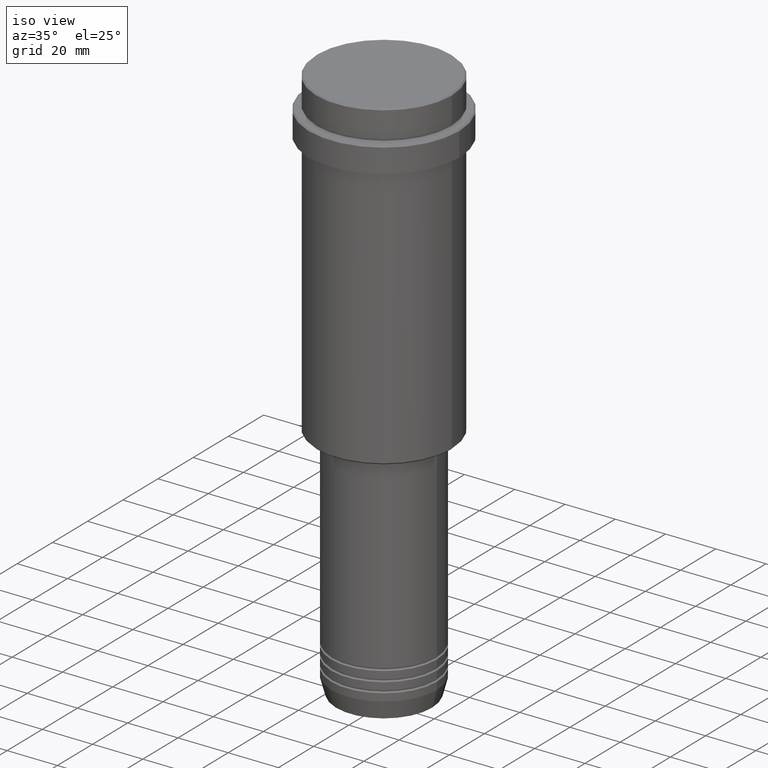
[diagram: clean part render]
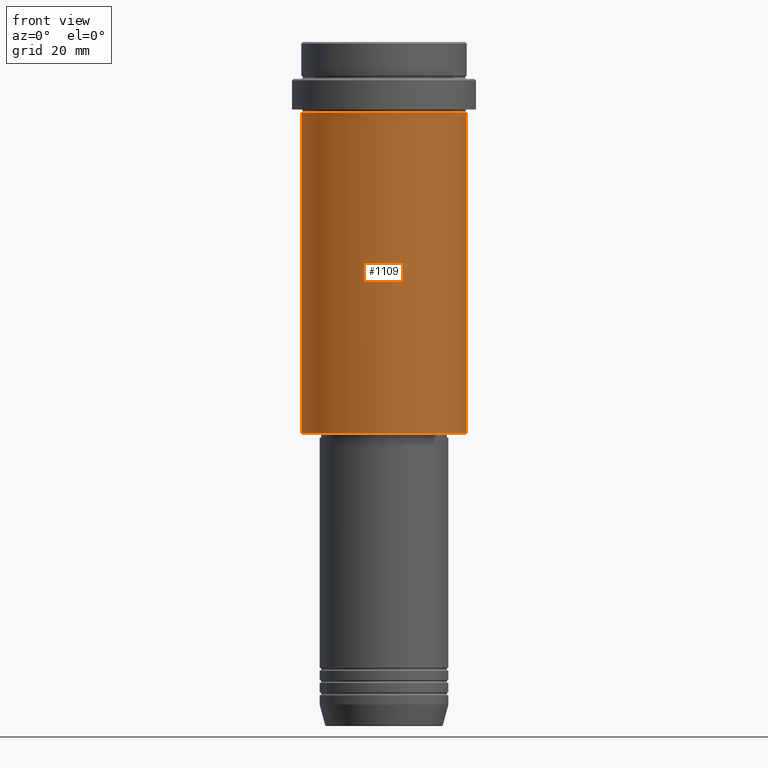
[diagram: tour spotlight — one face highlighted and labeled with its STEP entity id]
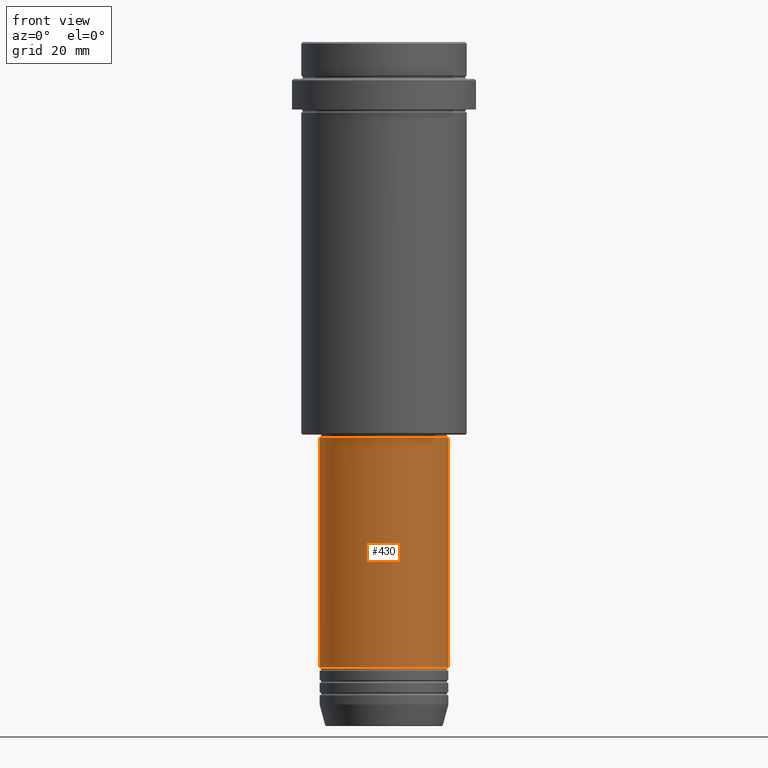
[diagram: tour spotlight — one face highlighted and labeled with its STEP entity id]
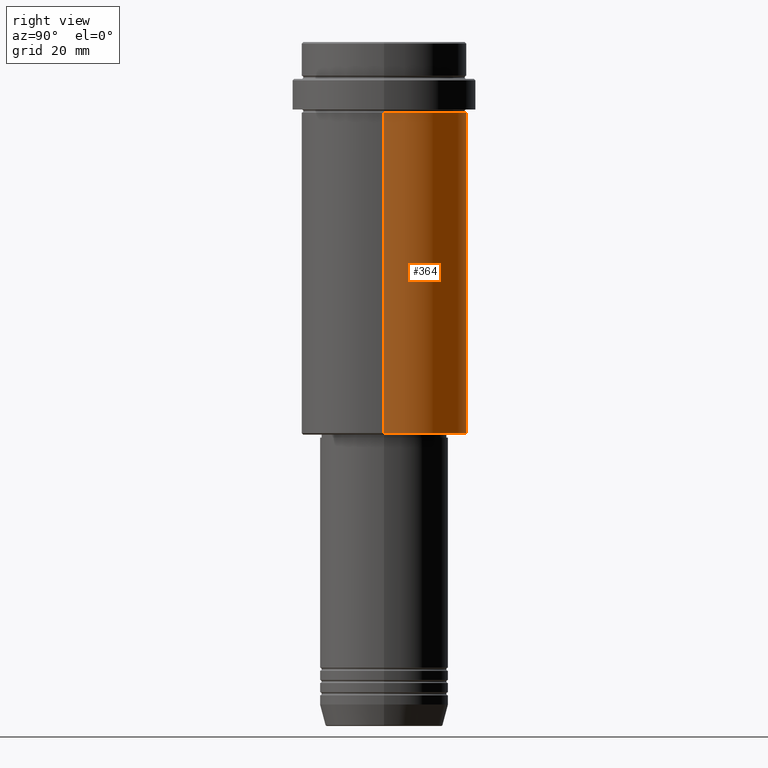
[diagram: tour spotlight — one face highlighted and labeled with its STEP entity id]
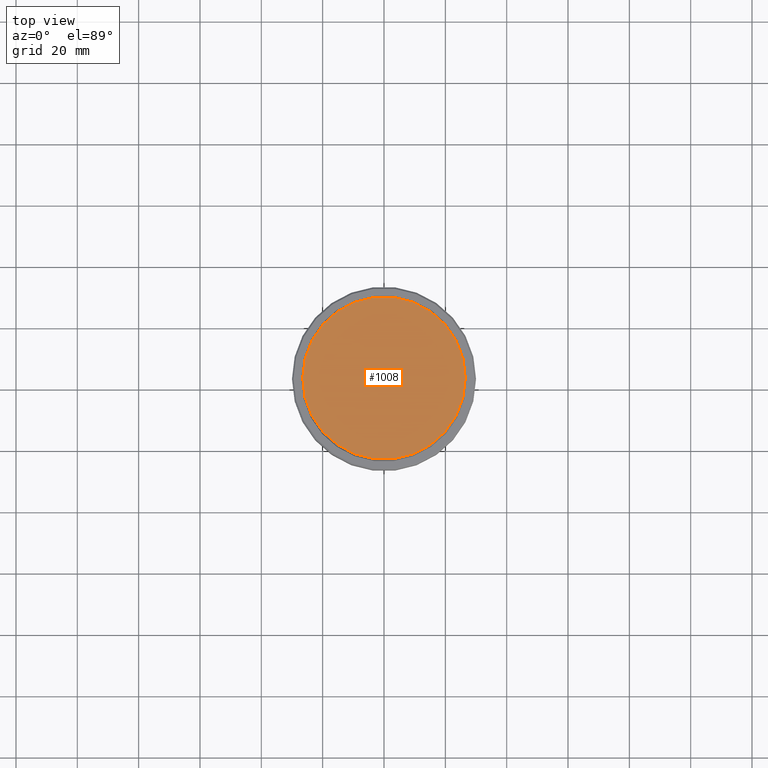
[diagram: tour spotlight — one face highlighted and labeled with its STEP entity id]
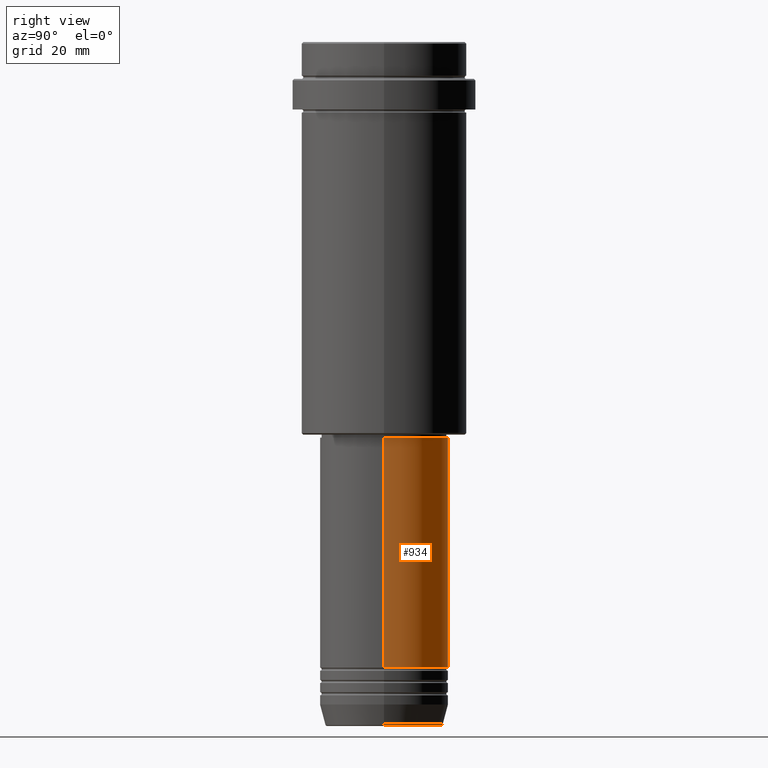
[diagram: tour spotlight — one face highlighted and labeled with its STEP entity id]
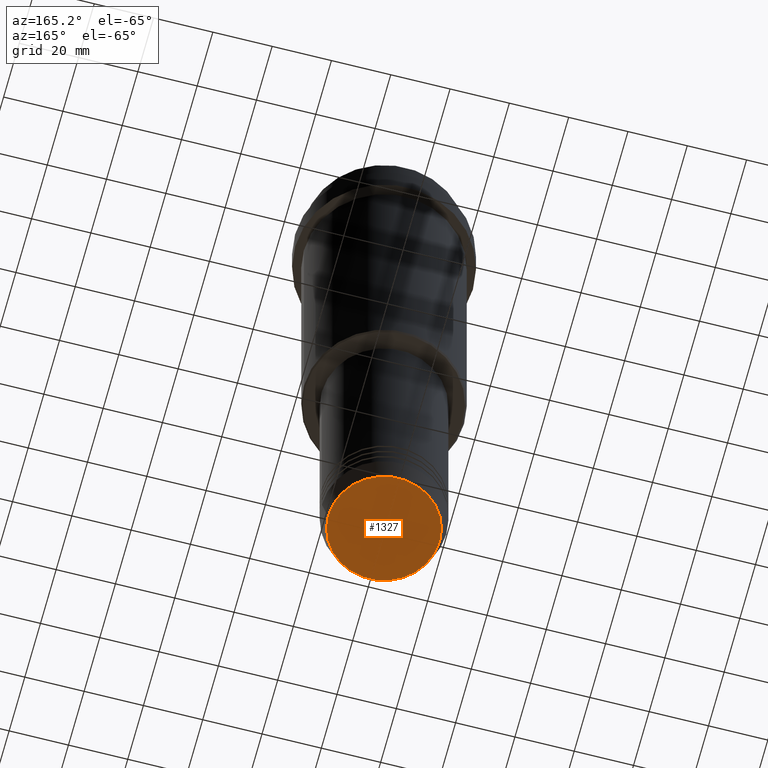
[diagram: tour spotlight — one face highlighted and labeled with its STEP entity id]
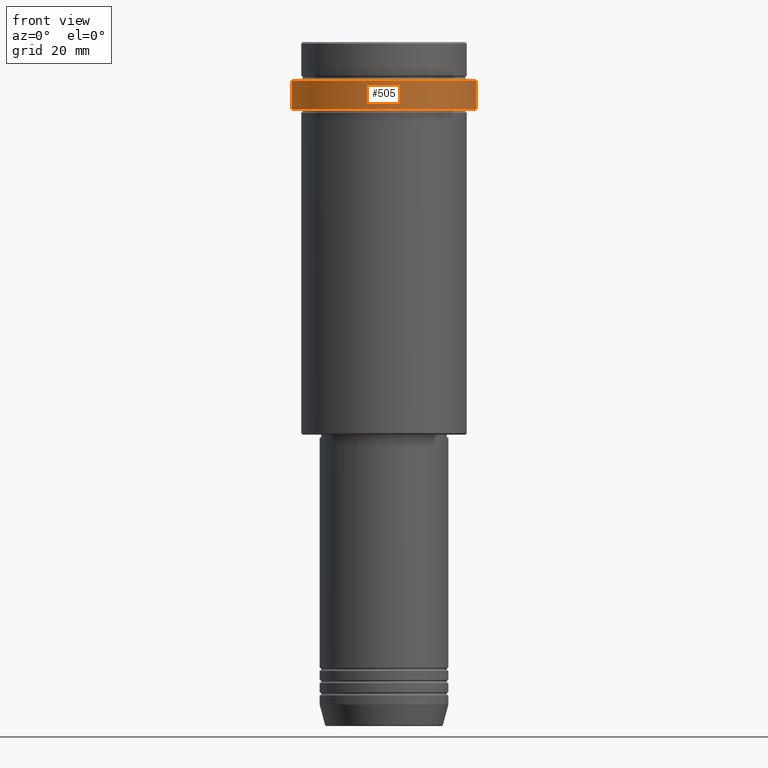
[diagram: tour spotlight — one face highlighted and labeled with its STEP entity id]
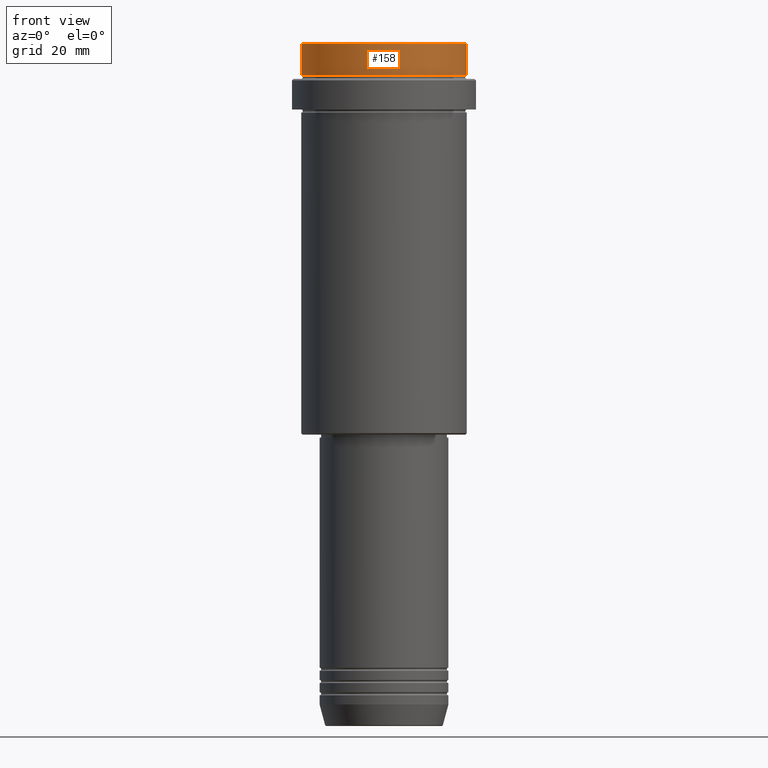
[diagram: tour spotlight — one face highlighted and labeled with its STEP entity id]
A machine part: a face-by-face anatomy tour. The part has 52 B-rep faces; the first image is the clean iso view, then the 8 largest visible faces are spotlighted one at a time (largest first), each with its STEP entity span.

Face 1 — front view, entity #1109. In plain terms, the highlighted cylindrical surface (partial cylindrical patch) has radius 27 mm, axis along (-0, -0, 1).
Definition (entity closure, byte-faithful):
#11 = AXIS2_PLACEMENT_3D ( 'NONE', #1123, #264, #685 ) ;
#61 = VERTEX_POINT ( 'NONE', #912 ) ;
#96 = LINE ( 'NONE', #214, #1414 ) ;
#100 = DIRECTION ( 'NONE',  ( -0.000000000000000000, -0.000000000000000000, 1.000000000000000000 ) ) ;
#116 = DIRECTION ( 'NONE',  ( 1.000000000000000000, 0.000000000000000000, 0.000000000000000000 ) ) ;
#117 = LINE ( 'NONE', #439, #1246 ) ;
#176 = AXIS2_PLACEMENT_3D ( 'NONE', #229, #690, #1225 ) ;
#185 = CARTESIAN_POINT ( 'NONE',  ( 26.99999999999999645, 0.000000000000000000, -127.5000000000000284 ) ) ;
#214 = CARTESIAN_POINT ( 'NONE',  ( 26.99999999999999645, 0.000000000000000000, 0.000000000000000000 ) ) ;
#229 = CARTESIAN_POINT ( 'NONE',  ( 0.000000000000000000, 0.000000000000000000, 0.000000000000000000 ) ) ;
#264 = DIRECTION ( 'NONE',  ( -0.000000000000000000, -0.000000000000000000, 1.000000000000000000 ) ) ;
#296 = VERTEX_POINT ( 'NONE', #185 ) ;
#439 = CARTESIAN_POINT ( 'NONE',  ( -26.99999999999999645, 3.306546357697853339E-15, 0.000000000000000000 ) ) ;
#549 = ORIENTED_EDGE ( 'NONE', *, *, #1101, .T. ) ;
#574 = EDGE_LOOP ( 'NONE', ( #650, #549, #773, #1400 ) ) ;
#610 = CARTESIAN_POINT ( 'NONE',  ( 26.99999999999999645, 0.000000000000000000, -23.00000000000000000 ) ) ;
#634 = CARTESIAN_POINT ( 'NONE',  ( 0.000000000000000000, 0.000000000000000000, -23.00000000000000000 ) ) ;
#637 = EDGE_CURVE ( 'NONE', #61, #1204, #117, .T. ) ;
#650 = ORIENTED_EDGE ( 'NONE', *, *, #637, .F. ) ;
#685 = DIRECTION ( 'NONE',  ( -1.000000000000000000, 0.000000000000000000, 0.000000000000000000 ) ) ;
#690 = DIRECTION ( 'NONE',  ( -0.000000000000000000, -0.000000000000000000, 1.000000000000000000 ) ) ;
#703 = FACE_OUTER_BOUND ( 'NONE', #574, .T. ) ;
#719 = VERTEX_POINT ( 'NONE', #610 ) ;
#773 = ORIENTED_EDGE ( 'NONE', *, *, #1408, .T. ) ;
#865 = DIRECTION ( 'NONE',  ( -0.000000000000000000, -0.000000000000000000, 1.000000000000000000 ) ) ;
#912 = CARTESIAN_POINT ( 'NONE',  ( -26.99999999999999645, 3.306546357697853339E-15, -127.5000000000000284 ) ) ;
#920 = EDGE_CURVE ( 'NONE', #1204, #719, #1338, .T. ) ;
#926 = CIRCLE ( 'NONE', #11, 26.99999999999999645 ) ;
#1053 = CARTESIAN_POINT ( 'NONE',  ( -26.99999999999999645, 3.306546357697853339E-15, -23.00000000000000000 ) ) ;
#1087 = DIRECTION ( 'NONE',  ( -0.000000000000000000, -0.000000000000000000, 1.000000000000000000 ) ) ;
#1101 = EDGE_CURVE ( 'NONE', #61, #296, #926, .T. ) ;
#1109 = ADVANCED_FACE ( 'NONE', ( #703 ), #1339, .T. ) ;
#1123 = CARTESIAN_POINT ( 'NONE',  ( 0.000000000000000000, 0.000000000000000000, -127.5000000000000284 ) ) ;
#1204 = VERTEX_POINT ( 'NONE', #1053 ) ;
#1225 = DIRECTION ( 'NONE',  ( 1.000000000000000000, 0.000000000000000000, 0.000000000000000000 ) ) ;
#1246 = VECTOR ( 'NONE', #865, 1000.000000000000000 ) ;
#1294 = AXIS2_PLACEMENT_3D ( 'NONE', #634, #1087, #116 ) ;
#1338 = CIRCLE ( 'NONE', #1294, 26.99999999999999645 ) ;
#1339 = CYLINDRICAL_SURFACE ( 'NONE', #176, 26.99999999999999645 ) ;
#1400 = ORIENTED_EDGE ( 'NONE', *, *, #920, .F. ) ;
#1408 = EDGE_CURVE ( 'NONE', #296, #719, #96, .T. ) ;
#1414 = VECTOR ( 'NONE', #100, 1000.000000000000000 ) ;

Face 2 — front view, entity #430. In plain terms, the highlighted cylindrical surface (partial cylindrical patch) has radius 21 mm, axis along (-0, -0, 1).
Definition (entity closure, byte-faithful):
#9 = CARTESIAN_POINT ( 'NONE',  ( 20.99999999999999645, 0.000000000000000000, 0.000000000000000000 ) ) ;
#48 = CARTESIAN_POINT ( 'NONE',  ( 0.000000000000000000, 0.000000000000000000, -203.9999999999999147 ) ) ;
#113 = CYLINDRICAL_SURFACE ( 'NONE', #812, 20.99999999999999645 ) ;
#130 = VERTEX_POINT ( 'NONE', #1330 ) ;
#300 = VERTEX_POINT ( 'NONE', #1131 ) ;
#403 = CIRCLE ( 'NONE', #1042, 21.00000000000000000 ) ;
#409 = CARTESIAN_POINT ( 'NONE',  ( 20.99999999999999645, 0.000000000000000000, -129.0000000000000284 ) ) ;
#430 = ADVANCED_FACE ( 'NONE', ( #1302 ), #113, .T. ) ;
#444 = DIRECTION ( 'NONE',  ( -0.000000000000000000, -0.000000000000000000, 1.000000000000000000 ) ) ;
#456 = VERTEX_POINT ( 'NONE', #1295 ) ;
#479 = DIRECTION ( 'NONE',  ( -0.000000000000000000, -0.000000000000000000, 1.000000000000000000 ) ) ;
#537 = CARTESIAN_POINT ( 'NONE',  ( -20.99999999999999645, 2.571758278209441267E-15, 0.000000000000000000 ) ) ;
#542 = DIRECTION ( 'NONE',  ( 1.000000000000000000, 0.000000000000000000, 0.000000000000000000 ) ) ;
#635 = DIRECTION ( 'NONE',  ( -0.000000000000000000, -0.000000000000000000, 1.000000000000000000 ) ) ;
#654 = DIRECTION ( 'NONE',  ( -0.000000000000000000, -0.000000000000000000, 1.000000000000000000 ) ) ;
#675 = EDGE_CURVE ( 'NONE', #130, #1187, #984, .T. ) ;
#699 = CIRCLE ( 'NONE', #1366, 20.99999999999999645 ) ;
#798 = ORIENTED_EDGE ( 'NONE', *, *, #1410, .F. ) ;
#812 = AXIS2_PLACEMENT_3D ( 'NONE', #959, #635, #542 ) ;
#871 = EDGE_CURVE ( 'NONE', #456, #300, #1209, .T. ) ;
#913 = DIRECTION ( 'NONE',  ( 1.000000000000000000, 0.000000000000000000, 0.000000000000000000 ) ) ;
#937 = ORIENTED_EDGE ( 'NONE', *, *, #1153, .T. ) ;
#949 = VECTOR ( 'NONE', #1210, 1000.000000000000000 ) ;
#959 = CARTESIAN_POINT ( 'NONE',  ( 0.000000000000000000, 0.000000000000000000, 0.000000000000000000 ) ) ;
#960 = CARTESIAN_POINT ( 'NONE',  ( 0.000000000000000000, 0.000000000000000000, -129.0000000000000284 ) ) ;
#984 = LINE ( 'NONE', #9, #949 ) ;
#1001 = ORIENTED_EDGE ( 'NONE', *, *, #675, .T. ) ;
#1022 = ORIENTED_EDGE ( 'NONE', *, *, #871, .F. ) ;
#1042 = AXIS2_PLACEMENT_3D ( 'NONE', #48, #479, #913 ) ;
#1065 = VECTOR ( 'NONE', #444, 1000.000000000000000 ) ;
#1131 = CARTESIAN_POINT ( 'NONE',  ( -20.99999999999999645, 2.571758278209441267E-15, -129.0000000000000284 ) ) ;
#1153 = EDGE_CURVE ( 'NONE', #456, #130, #403, .T. ) ;
#1183 = DIRECTION ( 'NONE',  ( 1.000000000000000000, 0.000000000000000000, 0.000000000000000000 ) ) ;
#1187 = VERTEX_POINT ( 'NONE', #409 ) ;
#1209 = LINE ( 'NONE', #537, #1065 ) ;
#1210 = DIRECTION ( 'NONE',  ( -0.000000000000000000, -0.000000000000000000, 1.000000000000000000 ) ) ;
#1229 = EDGE_LOOP ( 'NONE', ( #1022, #937, #1001, #798 ) ) ;
#1295 = CARTESIAN_POINT ( 'NONE',  ( -21.00000000000000000, 2.571758278209441661E-15, -203.9999999999999147 ) ) ;
#1302 = FACE_OUTER_BOUND ( 'NONE', #1229, .T. ) ;
#1330 = CARTESIAN_POINT ( 'NONE',  ( 21.00000000000000000, 0.000000000000000000, -203.9999999999999147 ) ) ;
#1366 = AXIS2_PLACEMENT_3D ( 'NONE', #960, #654, #1183 ) ;
#1410 = EDGE_CURVE ( 'NONE', #300, #1187, #699, .T. ) ;

Face 3 — right view, entity #364. In plain terms, the highlighted cylindrical surface (partial cylindrical patch) has radius 27 mm, axis along (-0, -0, 1).
Definition (entity closure, byte-faithful):
#10 = CIRCLE ( 'NONE', #467, 26.99999999999999645 ) ;
#43 = DIRECTION ( 'NONE',  ( 1.000000000000000000, 0.000000000000000000, 0.000000000000000000 ) ) ;
#61 = VERTEX_POINT ( 'NONE', #912 ) ;
#91 = DIRECTION ( 'NONE',  ( -1.000000000000000000, 0.000000000000000000, 0.000000000000000000 ) ) ;
#96 = LINE ( 'NONE', #214, #1414 ) ;
#100 = DIRECTION ( 'NONE',  ( -0.000000000000000000, -0.000000000000000000, 1.000000000000000000 ) ) ;
#117 = LINE ( 'NONE', #439, #1246 ) ;
#183 = DIRECTION ( 'NONE',  ( 1.000000000000000000, 0.000000000000000000, 0.000000000000000000 ) ) ;
#185 = CARTESIAN_POINT ( 'NONE',  ( 26.99999999999999645, 0.000000000000000000, -127.5000000000000284 ) ) ;
#214 = CARTESIAN_POINT ( 'NONE',  ( 26.99999999999999645, 0.000000000000000000, 0.000000000000000000 ) ) ;
#296 = VERTEX_POINT ( 'NONE', #185 ) ;
#364 = ADVANCED_FACE ( 'NONE', ( #483 ), #918, .T. ) ;
#397 = DIRECTION ( 'NONE',  ( -0.000000000000000000, -0.000000000000000000, 1.000000000000000000 ) ) ;
#439 = CARTESIAN_POINT ( 'NONE',  ( -26.99999999999999645, 3.306546357697853339E-15, 0.000000000000000000 ) ) ;
#467 = AXIS2_PLACEMENT_3D ( 'NONE', #939, #824, #183 ) ;
#483 = FACE_OUTER_BOUND ( 'NONE', #902, .T. ) ;
#602 = DIRECTION ( 'NONE',  ( -0.000000000000000000, -0.000000000000000000, 1.000000000000000000 ) ) ;
#610 = CARTESIAN_POINT ( 'NONE',  ( 26.99999999999999645, 0.000000000000000000, -23.00000000000000000 ) ) ;
#637 = EDGE_CURVE ( 'NONE', #61, #1204, #117, .T. ) ;
#711 = ORIENTED_EDGE ( 'NONE', *, *, #760, .F. ) ;
#719 = VERTEX_POINT ( 'NONE', #610 ) ;
#741 = EDGE_CURVE ( 'NONE', #296, #61, #1016, .T. ) ;
#760 = EDGE_CURVE ( 'NONE', #719, #1204, #10, .T. ) ;
#823 = ORIENTED_EDGE ( 'NONE', *, *, #741, .T. ) ;
#824 = DIRECTION ( 'NONE',  ( -0.000000000000000000, -0.000000000000000000, 1.000000000000000000 ) ) ;
#852 = AXIS2_PLACEMENT_3D ( 'NONE', #957, #602, #91 ) ;
#865 = DIRECTION ( 'NONE',  ( -0.000000000000000000, -0.000000000000000000, 1.000000000000000000 ) ) ;
#902 = EDGE_LOOP ( 'NONE', ( #823, #1258, #711, #1000 ) ) ;
#912 = CARTESIAN_POINT ( 'NONE',  ( -26.99999999999999645, 3.306546357697853339E-15, -127.5000000000000284 ) ) ;
#918 = CYLINDRICAL_SURFACE ( 'NONE', #1292, 26.99999999999999645 ) ;
#939 = CARTESIAN_POINT ( 'NONE',  ( 0.000000000000000000, 0.000000000000000000, -23.00000000000000000 ) ) ;
#957 = CARTESIAN_POINT ( 'NONE',  ( 0.000000000000000000, 0.000000000000000000, -127.5000000000000284 ) ) ;
#1000 = ORIENTED_EDGE ( 'NONE', *, *, #1408, .F. ) ;
#1016 = CIRCLE ( 'NONE', #852, 26.99999999999999645 ) ;
#1053 = CARTESIAN_POINT ( 'NONE',  ( -26.99999999999999645, 3.306546357697853339E-15, -23.00000000000000000 ) ) ;
#1144 = CARTESIAN_POINT ( 'NONE',  ( 0.000000000000000000, 0.000000000000000000, 0.000000000000000000 ) ) ;
#1204 = VERTEX_POINT ( 'NONE', #1053 ) ;
#1246 = VECTOR ( 'NONE', #865, 1000.000000000000000 ) ;
#1258 = ORIENTED_EDGE ( 'NONE', *, *, #637, .T. ) ;
#1292 = AXIS2_PLACEMENT_3D ( 'NONE', #1144, #397, #43 ) ;
#1408 = EDGE_CURVE ( 'NONE', #296, #719, #96, .T. ) ;
#1414 = VECTOR ( 'NONE', #100, 1000.000000000000000 ) ;

Face 4 — top view, entity #1008. In plain terms, the highlighted planar face has unit normal (0, -0, 1).
Definition (entity closure, byte-faithful):
#21 = DIRECTION ( 'NONE',  ( 1.000000000000000000, 0.000000000000000000, 0.000000000000000000 ) ) ;
#131 = PLANE ( 'NONE',  #750 ) ;
#138 = CARTESIAN_POINT ( 'NONE',  ( 26.50000000000002487, 3.275930187719171130E-15, 0.000000000000000000 ) ) ;
#242 = ORIENTED_EDGE ( 'NONE', *, *, #1034, .T. ) ;
#253 = EDGE_LOOP ( 'NONE', ( #242, #584 ) ) ;
#307 = DIRECTION ( 'NONE',  ( -0.000000000000000000, -0.000000000000000000, 1.000000000000000000 ) ) ;
#365 = DIRECTION ( 'NONE',  ( -0.000000000000000000, -0.000000000000000000, 1.000000000000000000 ) ) ;
#463 = CARTESIAN_POINT ( 'NONE',  ( 0.000000000000000000, 0.000000000000000000, 0.000000000000000000 ) ) ;
#472 = AXIS2_PLACEMENT_3D ( 'NONE', #1208, #307, #870 ) ;
#570 = CARTESIAN_POINT ( 'NONE',  ( 0.000000000000000000, 0.000000000000000000, 0.000000000000000000 ) ) ;
#584 = ORIENTED_EDGE ( 'NONE', *, *, #1373, .T. ) ;
#587 = FACE_OUTER_BOUND ( 'NONE', #253, .T. ) ;
#629 = CIRCLE ( 'NONE', #1019, 26.50000000000002487 ) ;
#750 = AXIS2_PLACEMENT_3D ( 'NONE', #463, #796, #21 ) ;
#796 = DIRECTION ( 'NONE',  ( 0.000000000000000000, -0.000000000000000000, 1.000000000000000000 ) ) ;
#870 = DIRECTION ( 'NONE',  ( 1.000000000000000000, 0.000000000000000000, 0.000000000000000000 ) ) ;
#1008 = ADVANCED_FACE ( 'NONE', ( #587 ), #131, .T. ) ;
#1015 = DIRECTION ( 'NONE',  ( 1.000000000000000000, 0.000000000000000000, 0.000000000000000000 ) ) ;
#1019 = AXIS2_PLACEMENT_3D ( 'NONE', #570, #365, #1015 ) ;
#1034 = EDGE_CURVE ( 'NONE', #1407, #1133, #629, .T. ) ;
#1076 = CARTESIAN_POINT ( 'NONE',  ( -26.50000000000002487, 0.000000000000000000, 0.000000000000000000 ) ) ;
#1133 = VERTEX_POINT ( 'NONE', #138 ) ;
#1208 = CARTESIAN_POINT ( 'NONE',  ( 0.000000000000000000, 0.000000000000000000, 0.000000000000000000 ) ) ;
#1226 = CIRCLE ( 'NONE', #472, 26.50000000000002487 ) ;
#1373 = EDGE_CURVE ( 'NONE', #1133, #1407, #1226, .T. ) ;
#1407 = VERTEX_POINT ( 'NONE', #1076 ) ;

Face 5 — right view, entity #934. In plain terms, the highlighted cylindrical surface (partial cylindrical patch) has radius 21 mm, axis along (-0, -0, 1).
Definition (entity closure, byte-faithful):
#9 = CARTESIAN_POINT ( 'NONE',  ( 20.99999999999999645, 0.000000000000000000, 0.000000000000000000 ) ) ;
#130 = VERTEX_POINT ( 'NONE', #1330 ) ;
#222 = CYLINDRICAL_SURFACE ( 'NONE', #581, 20.99999999999999645 ) ;
#247 = EDGE_CURVE ( 'NONE', #130, #456, #323, .T. ) ;
#258 = ORIENTED_EDGE ( 'NONE', *, *, #761, .F. ) ;
#300 = VERTEX_POINT ( 'NONE', #1131 ) ;
#323 = CIRCLE ( 'NONE', #1307, 21.00000000000000000 ) ;
#324 = ORIENTED_EDGE ( 'NONE', *, *, #675, .F. ) ;
#382 = CARTESIAN_POINT ( 'NONE',  ( 0.000000000000000000, 0.000000000000000000, -203.9999999999999147 ) ) ;
#409 = CARTESIAN_POINT ( 'NONE',  ( 20.99999999999999645, 0.000000000000000000, -129.0000000000000284 ) ) ;
#444 = DIRECTION ( 'NONE',  ( -0.000000000000000000, -0.000000000000000000, 1.000000000000000000 ) ) ;
#456 = VERTEX_POINT ( 'NONE', #1295 ) ;
#537 = CARTESIAN_POINT ( 'NONE',  ( -20.99999999999999645, 2.571758278209441267E-15, 0.000000000000000000 ) ) ;
#544 = FACE_OUTER_BOUND ( 'NONE', #1308, .T. ) ;
#568 = ORIENTED_EDGE ( 'NONE', *, *, #871, .T. ) ;
#581 = AXIS2_PLACEMENT_3D ( 'NONE', #1318, #967, #983 ) ;
#616 = DIRECTION ( 'NONE',  ( 1.000000000000000000, 0.000000000000000000, 0.000000000000000000 ) ) ;
#621 = DIRECTION ( 'NONE',  ( -0.000000000000000000, -0.000000000000000000, 1.000000000000000000 ) ) ;
#675 = EDGE_CURVE ( 'NONE', #130, #1187, #984, .T. ) ;
#761 = EDGE_CURVE ( 'NONE', #1187, #300, #1411, .T. ) ;
#871 = EDGE_CURVE ( 'NONE', #456, #300, #1209, .T. ) ;
#872 = AXIS2_PLACEMENT_3D ( 'NONE', #1167, #621, #616 ) ;
#910 = DIRECTION ( 'NONE',  ( -0.000000000000000000, -0.000000000000000000, 1.000000000000000000 ) ) ;
#934 = ADVANCED_FACE ( 'NONE', ( #544 ), #222, .T. ) ;
#949 = VECTOR ( 'NONE', #1210, 1000.000000000000000 ) ;
#967 = DIRECTION ( 'NONE',  ( -0.000000000000000000, -0.000000000000000000, 1.000000000000000000 ) ) ;
#983 = DIRECTION ( 'NONE',  ( 1.000000000000000000, 0.000000000000000000, 0.000000000000000000 ) ) ;
#984 = LINE ( 'NONE', #9, #949 ) ;
#1017 = ORIENTED_EDGE ( 'NONE', *, *, #247, .T. ) ;
#1065 = VECTOR ( 'NONE', #444, 1000.000000000000000 ) ;
#1131 = CARTESIAN_POINT ( 'NONE',  ( -20.99999999999999645, 2.571758278209441267E-15, -129.0000000000000284 ) ) ;
#1167 = CARTESIAN_POINT ( 'NONE',  ( 0.000000000000000000, 0.000000000000000000, -129.0000000000000284 ) ) ;
#1187 = VERTEX_POINT ( 'NONE', #409 ) ;
#1209 = LINE ( 'NONE', #537, #1065 ) ;
#1210 = DIRECTION ( 'NONE',  ( -0.000000000000000000, -0.000000000000000000, 1.000000000000000000 ) ) ;
#1295 = CARTESIAN_POINT ( 'NONE',  ( -21.00000000000000000, 2.571758278209441661E-15, -203.9999999999999147 ) ) ;
#1307 = AXIS2_PLACEMENT_3D ( 'NONE', #382, #910, #1348 ) ;
#1308 = EDGE_LOOP ( 'NONE', ( #1017, #568, #258, #324 ) ) ;
#1318 = CARTESIAN_POINT ( 'NONE',  ( 0.000000000000000000, 0.000000000000000000, 0.000000000000000000 ) ) ;
#1330 = CARTESIAN_POINT ( 'NONE',  ( 21.00000000000000000, 0.000000000000000000, -203.9999999999999147 ) ) ;
#1348 = DIRECTION ( 'NONE',  ( 1.000000000000000000, 0.000000000000000000, 0.000000000000000000 ) ) ;
#1411 = CIRCLE ( 'NONE', #872, 20.99999999999999645 ) ;

Face 6 — auxiliary view, entity #1327. In plain terms, the highlighted planar face has unit normal (0, -0, 1).
Definition (entity closure, byte-faithful):
#37 = CARTESIAN_POINT ( 'NONE',  ( 0.000000000000000000, 0.000000000000000000, -223.0000000000000284 ) ) ;
#103 = VERTEX_POINT ( 'NONE', #1143 ) ;
#168 = ORIENTED_EDGE ( 'NONE', *, *, #1100, .T. ) ;
#192 = CIRCLE ( 'NONE', #326, 18.74069215899265473 ) ;
#284 = FACE_OUTER_BOUND ( 'NONE', #751, .T. ) ;
#326 = AXIS2_PLACEMENT_3D ( 'NONE', #532, #625, #736 ) ;
#339 = DIRECTION ( 'NONE',  ( 1.000000000000000000, 0.000000000000000000, 0.000000000000000000 ) ) ;
#415 = DIRECTION ( 'NONE',  ( 1.000000000000000000, 0.000000000000000000, 0.000000000000000000 ) ) ;
#436 = CARTESIAN_POINT ( 'NONE',  ( 0.000000000000000000, 0.000000000000000000, -223.0000000000000284 ) ) ;
#484 = EDGE_CURVE ( 'NONE', #1150, #103, #192, .T. ) ;
#493 = CIRCLE ( 'NONE', #875, 18.74069215899265473 ) ;
#497 = ORIENTED_EDGE ( 'NONE', *, *, #484, .T. ) ;
#532 = CARTESIAN_POINT ( 'NONE',  ( 0.000000000000000000, 0.000000000000000000, -223.0000000000000284 ) ) ;
#625 = DIRECTION ( 'NONE',  ( 0.000000000000000000, 0.000000000000000000, -1.000000000000000000 ) ) ;
#736 = DIRECTION ( 'NONE',  ( 1.000000000000000000, 0.000000000000000000, 0.000000000000000000 ) ) ;
#751 = EDGE_LOOP ( 'NONE', ( #497, #168 ) ) ;
#804 = CARTESIAN_POINT ( 'NONE',  ( 18.74069215899265473, 0.000000000000000000, -223.0000000000000284 ) ) ;
#875 = AXIS2_PLACEMENT_3D ( 'NONE', #37, #1245, #339 ) ;
#981 = DIRECTION ( 'NONE',  ( 0.000000000000000000, -0.000000000000000000, 1.000000000000000000 ) ) ;
#1100 = EDGE_CURVE ( 'NONE', #103, #1150, #493, .T. ) ;
#1143 = CARTESIAN_POINT ( 'NONE',  ( -18.74069215899265473, 2.324645815916091924E-15, -223.0000000000000284 ) ) ;
#1150 = VERTEX_POINT ( 'NONE', #804 ) ;
#1200 = AXIS2_PLACEMENT_3D ( 'NONE', #436, #981, #415 ) ;
#1245 = DIRECTION ( 'NONE',  ( 0.000000000000000000, 0.000000000000000000, -1.000000000000000000 ) ) ;
#1327 = ADVANCED_FACE ( 'NONE', ( #284 ), #1398, .F. ) ;
#1398 = PLANE ( 'NONE',  #1200 ) ;

Face 7 — front view, entity #505. In plain terms, the highlighted cylindrical surface (partial cylindrical patch) has radius 30 mm, axis along (-0, -0, 1).
Definition (entity closure, byte-faithful):
#67 = DIRECTION ( 'NONE',  ( -0.000000000000000000, -0.000000000000000000, 1.000000000000000000 ) ) ;
#159 = CARTESIAN_POINT ( 'NONE',  ( 0.000000000000000000, 0.000000000000000000, -22.00000000000000355 ) ) ;
#162 = CARTESIAN_POINT ( 'NONE',  ( 29.99999999999999645, 0.000000000000000000, -22.00000000000000355 ) ) ;
#186 = DIRECTION ( 'NONE',  ( 0.000000000000000000, 0.000000000000000000, -1.000000000000000000 ) ) ;
#191 = DIRECTION ( 'NONE',  ( 1.000000000000000000, 0.000000000000000000, 0.000000000000000000 ) ) ;
#249 = ORIENTED_EDGE ( 'NONE', *, *, #1201, .T. ) ;
#305 = FACE_OUTER_BOUND ( 'NONE', #1402, .T. ) ;
#313 = ORIENTED_EDGE ( 'NONE', *, *, #334, .T. ) ;
#319 = CYLINDRICAL_SURFACE ( 'NONE', #694, 30.00000000000000000 ) ;
#334 = EDGE_CURVE ( 'NONE', #698, #1045, #534, .T. ) ;
#418 = LINE ( 'NONE', #1186, #1244 ) ;
#424 = EDGE_CURVE ( 'NONE', #698, #938, #418, .T. ) ;
#468 = CIRCLE ( 'NONE', #649, 30.00000000000000000 ) ;
#482 = ORIENTED_EDGE ( 'NONE', *, *, #424, .F. ) ;
#504 = CARTESIAN_POINT ( 'NONE',  ( -29.99999999999999645, 3.673940397442058389E-15, -22.00000000000000355 ) ) ;
#505 = ADVANCED_FACE ( 'NONE', ( #305 ), #319, .T. ) ;
#534 = CIRCLE ( 'NONE', #1358, 29.99999999999999645 ) ;
#633 = DIRECTION ( 'NONE',  ( -0.000000000000000000, -0.000000000000000000, 1.000000000000000000 ) ) ;
#649 = AXIS2_PLACEMENT_3D ( 'NONE', #1164, #186, #191 ) ;
#694 = AXIS2_PLACEMENT_3D ( 'NONE', #843, #633, #1067 ) ;
#698 = VERTEX_POINT ( 'NONE', #504 ) ;
#835 = LINE ( 'NONE', #1276, #1312 ) ;
#843 = CARTESIAN_POINT ( 'NONE',  ( 0.000000000000000000, 0.000000000000000000, 0.000000000000000000 ) ) ;
#938 = VERTEX_POINT ( 'NONE', #1074 ) ;
#1045 = VERTEX_POINT ( 'NONE', #162 ) ;
#1067 = DIRECTION ( 'NONE',  ( 1.000000000000000000, 0.000000000000000000, 0.000000000000000000 ) ) ;
#1074 = CARTESIAN_POINT ( 'NONE',  ( -30.00000000000000000, 3.673940397442059178E-15, -12.49999999999995381 ) ) ;
#1158 = DIRECTION ( 'NONE',  ( -0.000000000000000000, -0.000000000000000000, 1.000000000000000000 ) ) ;
#1164 = CARTESIAN_POINT ( 'NONE',  ( 0.000000000000000000, 0.000000000000000000, -12.49999999999995381 ) ) ;
#1169 = EDGE_CURVE ( 'NONE', #1045, #1277, #835, .T. ) ;
#1186 = CARTESIAN_POINT ( 'NONE',  ( -30.00000000000000000, 3.673940397442059178E-15, 0.000000000000000000 ) ) ;
#1201 = EDGE_CURVE ( 'NONE', #1277, #938, #468, .T. ) ;
#1244 = VECTOR ( 'NONE', #1286, 1000.000000000000000 ) ;
#1275 = DIRECTION ( 'NONE',  ( 1.000000000000000000, 0.000000000000000000, 0.000000000000000000 ) ) ;
#1276 = CARTESIAN_POINT ( 'NONE',  ( 30.00000000000000000, 0.000000000000000000, 0.000000000000000000 ) ) ;
#1277 = VERTEX_POINT ( 'NONE', #1390 ) ;
#1286 = DIRECTION ( 'NONE',  ( -0.000000000000000000, -0.000000000000000000, 1.000000000000000000 ) ) ;
#1312 = VECTOR ( 'NONE', #67, 1000.000000000000000 ) ;
#1358 = AXIS2_PLACEMENT_3D ( 'NONE', #159, #1158, #1275 ) ;
#1380 = ORIENTED_EDGE ( 'NONE', *, *, #1169, .T. ) ;
#1390 = CARTESIAN_POINT ( 'NONE',  ( 30.00000000000000000, 0.000000000000000000, -12.49999999999995381 ) ) ;
#1402 = EDGE_LOOP ( 'NONE', ( #482, #313, #1380, #249 ) ) ;

Face 8 — front view, entity #158. In plain terms, the highlighted cylindrical surface (partial cylindrical patch) has radius 27 mm, axis along (-0, -0, 1).
Definition (entity closure, byte-faithful):
#18 = LINE ( 'NONE', #455, #767 ) ;
#23 = CARTESIAN_POINT ( 'NONE',  ( 0.000000000000000000, 0.000000000000000000, -11.00000000000000178 ) ) ;
#27 = AXIS2_PLACEMENT_3D ( 'NONE', #342, #441, #552 ) ;
#38 = EDGE_LOOP ( 'NONE', ( #884, #1234, #480, #474 ) ) ;
#74 = CARTESIAN_POINT ( 'NONE',  ( -26.99999999999999645, 3.306546357697853339E-15, 0.000000000000000000 ) ) ;
#132 = EDGE_CURVE ( 'NONE', #1140, #1231, #866, .T. ) ;
#158 = ADVANCED_FACE ( 'NONE', ( #1207 ), #658, .T. ) ;
#224 = EDGE_CURVE ( 'NONE', #1231, #1078, #18, .T. ) ;
#342 = CARTESIAN_POINT ( 'NONE',  ( 0.000000000000000000, 0.000000000000000000, 0.000000000000000000 ) ) ;
#349 = AXIS2_PLACEMENT_3D ( 'NONE', #391, #963, #1161 ) ;
#391 = CARTESIAN_POINT ( 'NONE',  ( 0.000000000000000000, 0.000000000000000000, -0.4999999999999761302 ) ) ;
#395 = EDGE_CURVE ( 'NONE', #1140, #535, #728, .T. ) ;
#429 = DIRECTION ( 'NONE',  ( -0.000000000000000000, -0.000000000000000000, 1.000000000000000000 ) ) ;
#441 = DIRECTION ( 'NONE',  ( -0.000000000000000000, -0.000000000000000000, 1.000000000000000000 ) ) ;
#446 = VECTOR ( 'NONE', #429, 1000.000000000000000 ) ;
#455 = CARTESIAN_POINT ( 'NONE',  ( 26.99999999999999645, 0.000000000000000000, 0.000000000000000000 ) ) ;
#457 = CARTESIAN_POINT ( 'NONE',  ( -26.99999999999999645, 3.306546357697853339E-15, -11.00000000000000178 ) ) ;
#470 = DIRECTION ( 'NONE',  ( -0.000000000000000000, -0.000000000000000000, 1.000000000000000000 ) ) ;
#474 = ORIENTED_EDGE ( 'NONE', *, *, #734, .T. ) ;
#480 = ORIENTED_EDGE ( 'NONE', *, *, #224, .T. ) ;
#481 = CARTESIAN_POINT ( 'NONE',  ( -26.99999999999999645, 3.306546357697853339E-15, -0.4999999999999761302 ) ) ;
#535 = VERTEX_POINT ( 'NONE', #481 ) ;
#552 = DIRECTION ( 'NONE',  ( 1.000000000000000000, 0.000000000000000000, 0.000000000000000000 ) ) ;
#565 = DIRECTION ( 'NONE',  ( -0.000000000000000000, -0.000000000000000000, 1.000000000000000000 ) ) ;
#658 = CYLINDRICAL_SURFACE ( 'NONE', #27, 26.99999999999999645 ) ;
#709 = CARTESIAN_POINT ( 'NONE',  ( 26.99999999999999645, 0.000000000000000000, -11.00000000000000178 ) ) ;
#728 = LINE ( 'NONE', #74, #446 ) ;
#734 = EDGE_CURVE ( 'NONE', #1078, #535, #1041, .T. ) ;
#767 = VECTOR ( 'NONE', #565, 1000.000000000000000 ) ;
#866 = CIRCLE ( 'NONE', #1406, 26.99999999999999645 ) ;
#884 = ORIENTED_EDGE ( 'NONE', *, *, #395, .F. ) ;
#899 = CARTESIAN_POINT ( 'NONE',  ( 26.99999999999999645, 0.000000000000000000, -0.4999999999999761302 ) ) ;
#963 = DIRECTION ( 'NONE',  ( 0.000000000000000000, 0.000000000000000000, -1.000000000000000000 ) ) ;
#1041 = CIRCLE ( 'NONE', #349, 26.99999999999999645 ) ;
#1078 = VERTEX_POINT ( 'NONE', #899 ) ;
#1140 = VERTEX_POINT ( 'NONE', #457 ) ;
#1161 = DIRECTION ( 'NONE',  ( 1.000000000000000000, 0.000000000000000000, 0.000000000000000000 ) ) ;
#1207 = FACE_OUTER_BOUND ( 'NONE', #38, .T. ) ;
#1231 = VERTEX_POINT ( 'NONE', #709 ) ;
#1234 = ORIENTED_EDGE ( 'NONE', *, *, #132, .T. ) ;
#1342 = DIRECTION ( 'NONE',  ( 1.000000000000000000, 0.000000000000000000, 0.000000000000000000 ) ) ;
#1406 = AXIS2_PLACEMENT_3D ( 'NONE', #23, #470, #1342 ) ;